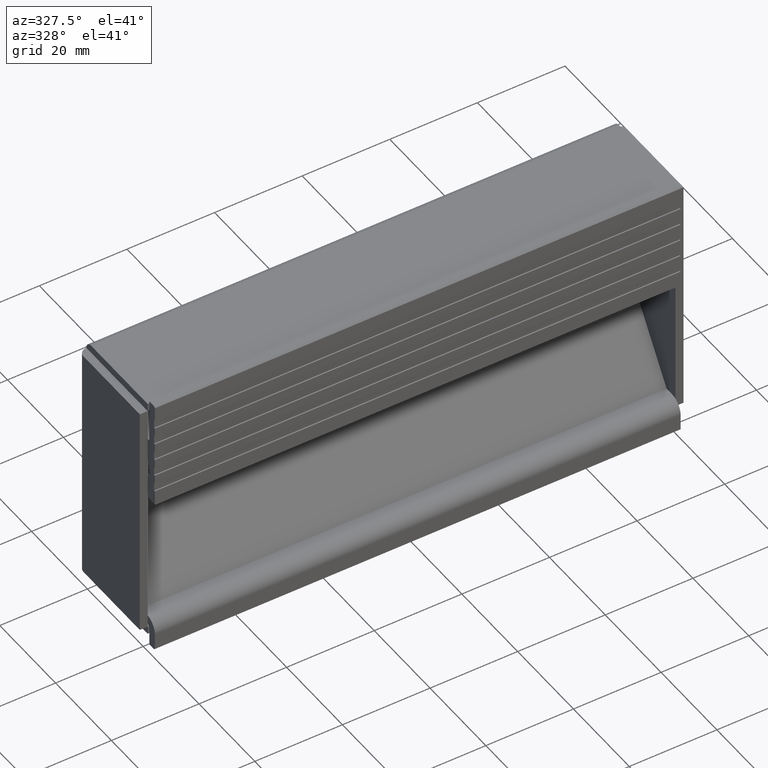
[diagram: clean part render]
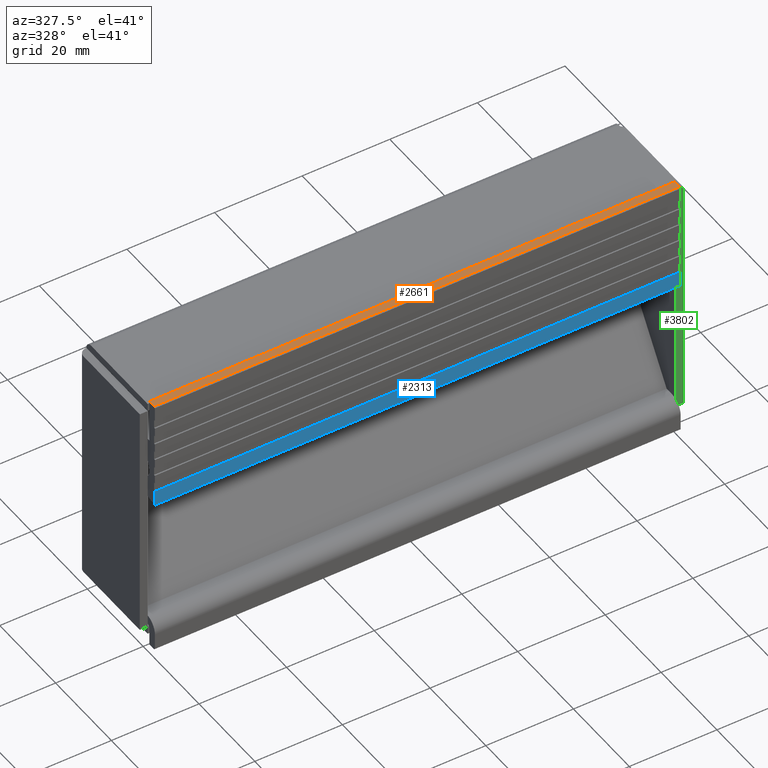
[diagram: same view with three faces highlighted in distinct colors, each labeled with its STEP entity id]
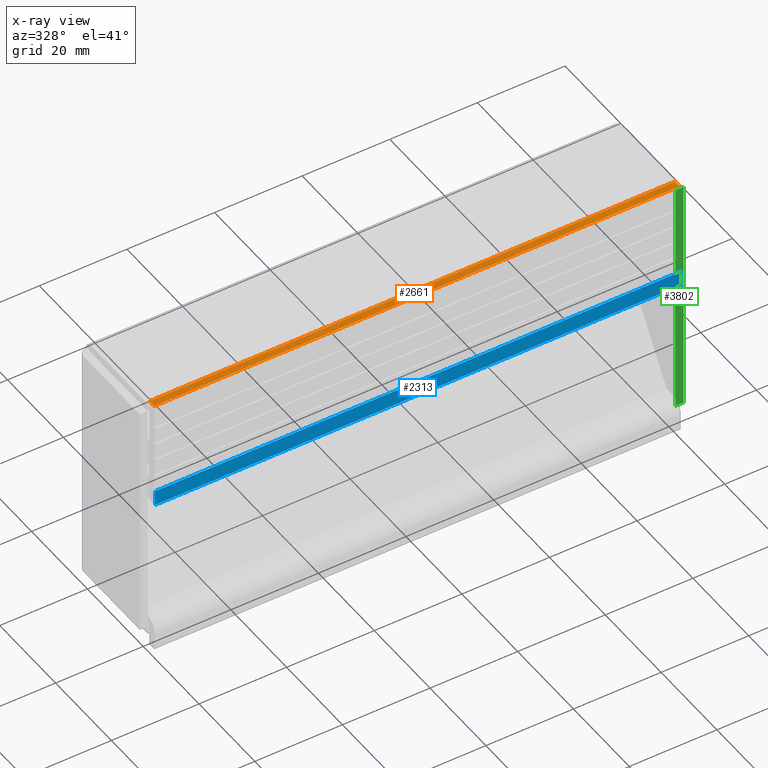
[diagram: x-ray of the same camera — body ghosted, the three highlighted faces saturated]
A machine part, auxiliary view with three faces highlighted in distinct colors.
The next image is the same camera in x-ray (body ghosted, the three faces saturated) — at least one of them is partly hidden behind the body in this view.
Their STEP definitions:

[orange] entity #2661 — the highlighted face is a freeform B-spline surface patch.
#982=CARTESIAN_POINT('',(60.0,0.0,62.0));
#983=VERTEX_POINT('',#982);
#989=CARTESIAN_POINT('',(60.0,-1.699999999999905,62.0));
#990=VERTEX_POINT('',#989);
#991=CARTESIAN_POINT('',(60.0,0.0,62.0));
#992=CARTESIAN_POINT('',(60.0,-1.699999999999905,62.0));
#993=QUASI_UNIFORM_CURVE('',1,(#991,#992),.UNSPECIFIED.,.F.,.U.);
#994=EDGE_CURVE('',#983,#990,#993,.T.);
#1697=CARTESIAN_POINT('',(-60.0,-1.699999999999905,62.0));
#1698=VERTEX_POINT('',#1697);
#1704=CARTESIAN_POINT('',(-60.0,0.0,62.0));
#1705=VERTEX_POINT('',#1704);
#1706=CARTESIAN_POINT('',(-60.0,0.0,62.0));
#1707=CARTESIAN_POINT('',(-60.0,-1.699999999999905,62.0));
#1708=QUASI_UNIFORM_CURVE('',1,(#1706,#1707),.UNSPECIFIED.,.F.,.U.);
#1709=EDGE_CURVE('',#1705,#1698,#1708,.T.);
#1790=CARTESIAN_POINT('',(-60.0,0.0,62.0));
#1791=CARTESIAN_POINT('',(60.0,0.0,62.0));
#1792=QUASI_UNIFORM_CURVE('',1,(#1790,#1791),.UNSPECIFIED.,.F.,.U.);
#1793=EDGE_CURVE('',#1705,#983,#1792,.T.);
#2640=CARTESIAN_POINT('',(-60.0,-1.699999999999905,62.0));
#2641=CARTESIAN_POINT('',(60.0,-1.699999999999905,62.0));
#2642=QUASI_UNIFORM_CURVE('',1,(#2640,#2641),.UNSPECIFIED.,.F.,.U.);
#2643=EDGE_CURVE('',#1698,#990,#2642,.T.);
#2650=CARTESIAN_POINT('',(-65.993999767416710,-1.784915044580122,62.0));
#2651=CARTESIAN_POINT('',(65.994002986067542,-1.784915044580122,62.0));
#2652=CARTESIAN_POINT('',(-65.993999767416710,0.084915044580216,62.0));
#2653=CARTESIAN_POINT('',(65.994002986067542,0.084915044580216,62.0));
#2654=B_SPLINE_SURFACE_WITH_KNOTS('',1,1,((#2650,#2652),(#2651,#2653)),.UNSPECIFIED.,.F.,.F.,.U.,(2,2),(2,2),(0.0,131.988002753484210),(0.0,1.869830089160338),.UNSPECIFIED.);
#2655=ORIENTED_EDGE('',*,*,#994,.F.);
#2656=ORIENTED_EDGE('',*,*,#1793,.F.);
#2657=ORIENTED_EDGE('',*,*,#1709,.T.);
#2658=ORIENTED_EDGE('',*,*,#2643,.T.);
#2659=EDGE_LOOP('',(#2655,#2656,#2657,#2658));
#2660=FACE_OUTER_BOUND('',#2659,.T.);
#2661=ADVANCED_FACE('',(#2660),#2654,.T.);

[blue] entity #2313 — the highlighted face is a freeform B-spline surface patch.
#1136=CARTESIAN_POINT('',(60.0,-2.0,40.500000000000000));
#1137=VERTEX_POINT('',#1136);
#1143=CARTESIAN_POINT('',(60.0,-2.0,37.0));
#1144=VERTEX_POINT('',#1143);
#1145=CARTESIAN_POINT('',(60.0,-2.0,40.500000000000000));
#1146=CARTESIAN_POINT('',(60.0,-2.0,37.0));
#1147=QUASI_UNIFORM_CURVE('',1,(#1145,#1146),.UNSPECIFIED.,.F.,.U.);
#1148=EDGE_CURVE('',#1137,#1144,#1147,.T.);
#1543=CARTESIAN_POINT('',(-60.0,-2.0,37.0));
#1544=VERTEX_POINT('',#1543);
#1550=CARTESIAN_POINT('',(-60.0,-2.0,40.500000000000000));
#1551=VERTEX_POINT('',#1550);
#1552=CARTESIAN_POINT('',(-60.0,-2.0,40.500000000000000));
#1553=CARTESIAN_POINT('',(-60.0,-2.0,37.0));
#1554=QUASI_UNIFORM_CURVE('',1,(#1552,#1553),.UNSPECIFIED.,.F.,.U.);
#1555=EDGE_CURVE('',#1551,#1544,#1554,.T.);
#2288=CARTESIAN_POINT('',(-60.0,-2.0,37.0));
#2289=CARTESIAN_POINT('',(60.0,-2.0,37.0));
#2290=QUASI_UNIFORM_CURVE('',1,(#2288,#2289),.UNSPECIFIED.,.F.,.U.);
#2291=EDGE_CURVE('',#1544,#1144,#2290,.T.);
#2298=CARTESIAN_POINT('',(-65.993999767416710,-2.0,40.674824993216333));
#2299=CARTESIAN_POINT('',(-65.993999767416710,-2.0,36.825174912906363));
#2300=CARTESIAN_POINT('',(65.994002986067542,-2.0,40.674824993216333));
#2301=CARTESIAN_POINT('',(65.994002986067542,-2.0,36.825174912906363));
#2302=B_SPLINE_SURFACE_WITH_KNOTS('',1,1,((#2298,#2300),(#2299,#2301)),.UNSPECIFIED.,.F.,.F.,.U.,(2,2),(2,2),(0.0,3.849650080309963),(0.0,131.988002753484210),.UNSPECIFIED.);
#2303=ORIENTED_EDGE('',*,*,#1148,.F.);
#2304=CARTESIAN_POINT('',(-60.0,-2.0,40.500000000000000));
#2305=CARTESIAN_POINT('',(60.0,-2.0,40.500000000000000));
#2306=QUASI_UNIFORM_CURVE('',1,(#2304,#2305),.UNSPECIFIED.,.F.,.U.);
#2307=EDGE_CURVE('',#1551,#1137,#2306,.T.);
#2308=ORIENTED_EDGE('',*,*,#2307,.F.);
#2309=ORIENTED_EDGE('',*,*,#1555,.T.);
#2310=ORIENTED_EDGE('',*,*,#2291,.T.);
#2311=EDGE_LOOP('',(#2303,#2308,#2309,#2310));
#2312=FACE_OUTER_BOUND('',#2311,.T.);
#2313=ADVANCED_FACE('',(#2312),#2302,.T.);

[green] entity #3802 — the highlighted face is a freeform B-spline surface patch.
#3767=CARTESIAN_POINT('',(60.160090042073932,-22.0,-30.247249893399331));
#3768=CARTESIAN_POINT('',(62.139909233729647,-22.0,-30.247249893399331));
#3769=CARTESIAN_POINT('',(60.160090042073932,-22.0,30.247251368614290));
#3770=CARTESIAN_POINT('',(62.139909233729647,-22.0,30.247251368614290));
#3771=B_SPLINE_SURFACE_WITH_KNOTS('',1,1,((#3767,#3769),(#3768,#3770)),.UNSPECIFIED.,.F.,.F.,.U.,(2,2),(2,2),(0.0,1.979819191655714),(0.0,60.494501262013607),.UNSPECIFIED.);
#3772=CARTESIAN_POINT('',(62.049999999999997,-22.0,-27.500000000000000));
#3773=VERTEX_POINT('',#3772);
#3774=CARTESIAN_POINT('',(62.049999999999997,-22.0,27.500000000000000));
#3775=VERTEX_POINT('',#3774);
#3776=CARTESIAN_POINT('',(62.049999999999997,-22.0,-27.500000000000000));
#3777=CARTESIAN_POINT('',(62.049999999999997,-22.0,27.500000000000000));
#3778=QUASI_UNIFORM_CURVE('',1,(#3776,#3777),.UNSPECIFIED.,.F.,.U.);
#3779=EDGE_CURVE('',#3773,#3775,#3778,.T.);
#3780=ORIENTED_EDGE('',*,*,#3779,.T.);
#3781=CARTESIAN_POINT('',(60.250000000000000,-22.0,27.500000000000000));
#3782=VERTEX_POINT('',#3781);
#3783=CARTESIAN_POINT('',(62.049999999999997,-22.0,27.500000000000000));
#3784=CARTESIAN_POINT('',(60.250000000000000,-22.0,27.500000000000000));
#3785=QUASI_UNIFORM_CURVE('',1,(#3783,#3784),.UNSPECIFIED.,.F.,.U.);
#3786=EDGE_CURVE('',#3775,#3782,#3785,.T.);
#3787=ORIENTED_EDGE('',*,*,#3786,.T.);
#3788=CARTESIAN_POINT('',(60.250000000000000,-22.0,-27.500000000000000));
#3789=VERTEX_POINT('',#3788);
#3790=CARTESIAN_POINT('',(60.250000000000000,-22.0,27.500000000000000));
#3791=CARTESIAN_POINT('',(60.250000000000000,-22.0,-27.500000000000000));
#3792=QUASI_UNIFORM_CURVE('',1,(#3790,#3791),.UNSPECIFIED.,.F.,.U.);
#3793=EDGE_CURVE('',#3782,#3789,#3792,.T.);
#3794=ORIENTED_EDGE('',*,*,#3793,.T.);
#3795=CARTESIAN_POINT('',(60.250000000000000,-22.0,-27.500000000000000));
#3796=CARTESIAN_POINT('',(62.049999999999997,-22.0,-27.500000000000000));
#3797=QUASI_UNIFORM_CURVE('',1,(#3795,#3796),.UNSPECIFIED.,.F.,.U.);
#3798=EDGE_CURVE('',#3789,#3773,#3797,.T.);
#3799=ORIENTED_EDGE('',*,*,#3798,.T.);
#3800=EDGE_LOOP('',(#3780,#3787,#3794,#3799));
#3801=FACE_OUTER_BOUND('',#3800,.T.);
#3802=ADVANCED_FACE('',(#3801),#3771,.T.);